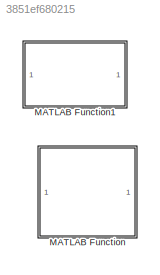
MODEL slx_3851ef680215
KIND library
CONFIG AbsTol = auto
CONFIG EnableMultiTasking = off
CONFIG FixedStep = auto
CONFIG MaxStep = auto
CONFIG MinStep = auto
CONFIG RelTol = 1e-3
CONFIG SampleTimeConstraint = Unconstrained
CONFIG SolverName = VariableStepAuto
CONFIG StartTime = 0.0
CONFIG StopTime = 10.0
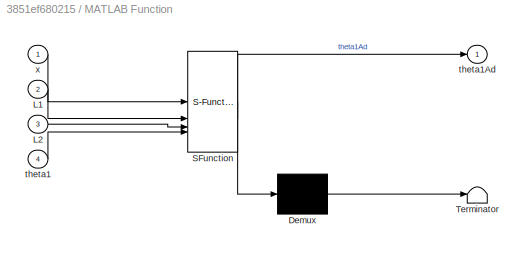
BLOCK [SubSystem] MATLAB Function
  ErrorFcn = Stateflow.Translate.translate
  PermitHierarchicalResolution = ExplicitOnly
  SFBlockType = MATLAB Function
  TreatAsAtomicUnit = on
BLOCK [Demux] MATLAB Function/ Demux 
  Outputs = 1
BLOCK [S-Function] MATLAB Function/ SFunction 
  EnableBusSupport = off
  FunctionName = sf_sfun
  PortCounts = [4 2]
  SFcnIsStateOwnerBlock = off
  SFunctionDeploymentMode = off
  Tag = Stateflow S-Function 2
BLOCK [Terminator] MATLAB Function/ Terminator 
BLOCK [Inport] MATLAB Function/L1
  Port = 2
BLOCK [Inport] MATLAB Function/L2
  Port = 3
BLOCK [Inport] MATLAB Function/theta1
  Port = 4
BLOCK [Outport] MATLAB Function/theta1Ad
BLOCK [Inport] MATLAB Function/x
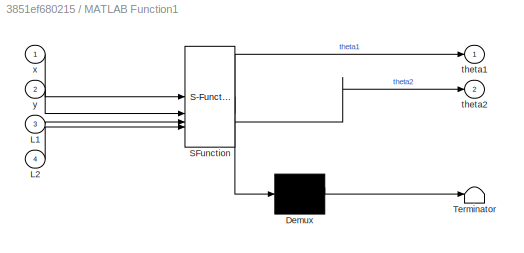
BLOCK [SubSystem] MATLAB Function1
  ErrorFcn = Stateflow.Translate.translate
  PermitHierarchicalResolution = ExplicitOnly
  SFBlockType = MATLAB Function
  TreatAsAtomicUnit = on
BLOCK [Demux] MATLAB Function1/ Demux 
  Outputs = 1
BLOCK [S-Function] MATLAB Function1/ SFunction 
  EnableBusSupport = on
  FunctionName = sf_sfun
  PortCounts = [4 3]
  SFcnIsStateOwnerBlock = off
  SFunctionDeploymentMode = off
  Tag = Stateflow S-Function 21
BLOCK [Terminator] MATLAB Function1/ Terminator 
BLOCK [Inport] MATLAB Function1/L1
  Port = 3
BLOCK [Inport] MATLAB Function1/L2
  Port = 4
BLOCK [Outport] MATLAB Function1/theta1
BLOCK [Outport] MATLAB Function1/theta2
  Port = 2
BLOCK [Inport] MATLAB Function1/x
BLOCK [Inport] MATLAB Function1/y
  Port = 2
CHART MATLAB Function states=1 transitions=1
  STATE_LABEL 'eML_blk_kernel()'
  STATE_LABEL 'SCRIPT:\nfunction theta1Ad = angAd(x, L1, L2, theta1)\n\nl = cos(theta1)*(L1 + L2);\n\ntheta1Ad = asin(-x/l);'
CHART MATLAB Function1 states=1 transitions=1
  STATE_LABEL 'eML_blk_kernel()'
  STATE_LABEL 'SCRIPT:\nfunction [theta1, theta2] = angSide(x,y,L1,L2)\ntheta1 = atan(-x/y);\nif theta1 ~= 0\n    d = x / (2*sin(theta1));\n    theta2 = acos(d/L1);\nelse\n    d = -y/2;\n    theta2 = acos(d/L1);\nend\nend'
CHART  states=0 transitions=0
CHART  states=0 transitions=0
